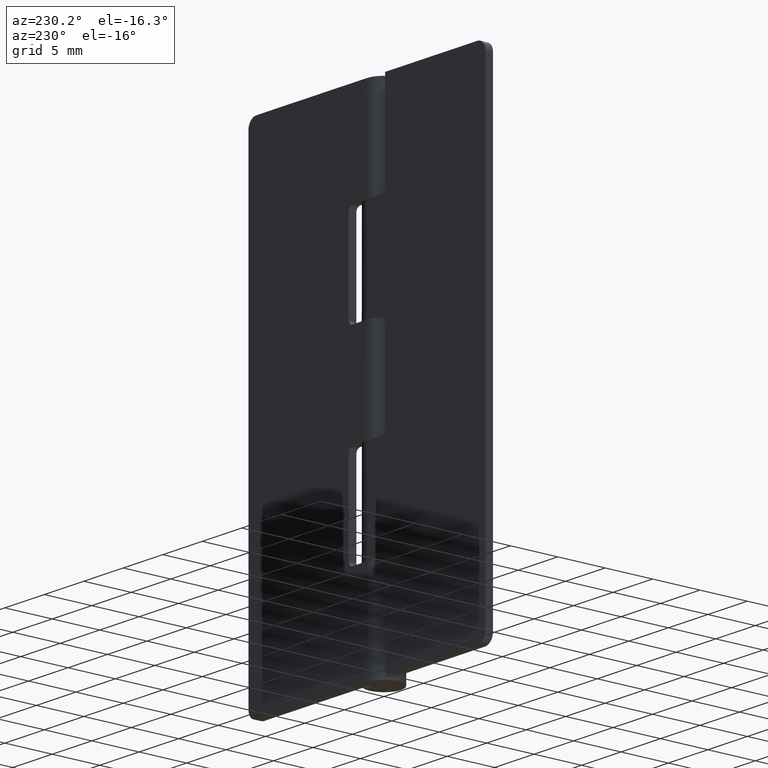
[diagram: clean part render]
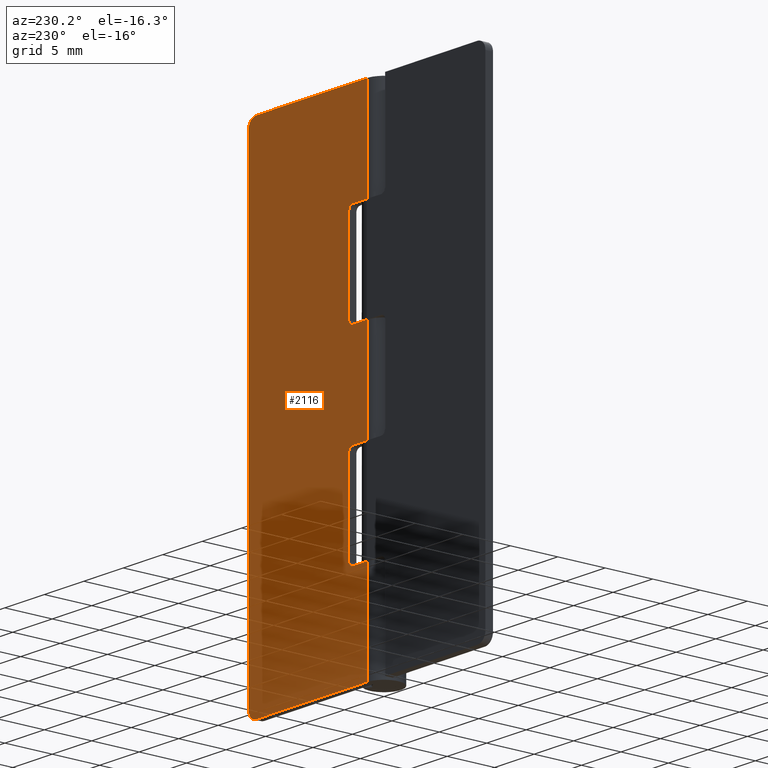
[diagram: same view with one face highlighted and labeled with its STEP entity id]
A machine part, auxiliary view. The second image highlights one B-rep face of the part: STEP entity #2116.
In plain terms, the highlighted face is a freeform B-spline surface patch.
Its self-contained STEP definition (entity closure, byte-faithful):
#1126=CARTESIAN_POINT('',(1.800003000000000,1.799999000000000,20.400001999999901));
#1127=VERTEX_POINT('',#1126);
#1133=CARTESIAN_POINT('',(2.300003000000000,1.799999000000000,19.900001999999901));
#1134=VERTEX_POINT('',#1133);
#1135=CARTESIAN_POINT('',(2.300003000000000,1.799999000000000,19.900001999999901));
#1136=CARTESIAN_POINT('',(2.300003000000000,1.799998999999940,20.400001999999898));
#1137=CARTESIAN_POINT('',(1.800003000000000,1.799999000000000,20.400001999999901));
#1145=(BOUNDED_CURVE()B_SPLINE_CURVE(2,(#1135,#1136,#1137),.UNSPECIFIED.,.F.,.U.)CURVE()GEOMETRIC_REPRESENTATION_ITEM()QUASI_UNIFORM_CURVE()RATIONAL_B_SPLINE_CURVE((1.0,0.707106781186548,1.0))REPRESENTATION_ITEM(''));
#1146=EDGE_CURVE('',#1134,#1127,#1145,.T.);
#1189=CARTESIAN_POINT('',(2.300003000000000,1.799999000000000,10.699997000000000));
#1190=VERTEX_POINT('',#1189);
#1196=CARTESIAN_POINT('',(1.800003000000000,1.799999000000000,10.199997000000000));
#1197=VERTEX_POINT('',#1196);
#1198=CARTESIAN_POINT('',(1.800003000000000,1.799999000000000,10.199997000000000));
#1199=CARTESIAN_POINT('',(2.300003000000000,1.799998999999940,10.199997000000000));
#1200=CARTESIAN_POINT('',(2.300003000000000,1.799999000000000,10.699997000000000));
#1208=(BOUNDED_CURVE()B_SPLINE_CURVE(2,(#1198,#1199,#1200),.UNSPECIFIED.,.F.,.U.)CURVE()GEOMETRIC_REPRESENTATION_ITEM()QUASI_UNIFORM_CURVE()RATIONAL_B_SPLINE_CURVE((1.0,0.707106781186548,1.0))REPRESENTATION_ITEM(''));
#1209=EDGE_CURVE('',#1197,#1190,#1208,.T.);
#1250=CARTESIAN_POINT('',(1.800003000000000,1.799999000000000,40.799995999999886));
#1251=VERTEX_POINT('',#1250);
#1257=CARTESIAN_POINT('',(2.300003000000000,1.799999000000000,40.299995999999901));
#1258=VERTEX_POINT('',#1257);
#1259=CARTESIAN_POINT('',(2.300003000000000,1.799998999999940,40.299995999999901));
#1260=CARTESIAN_POINT('',(2.300003000000000,1.799998999999940,40.799995999999908));
#1261=CARTESIAN_POINT('',(1.800003000000000,1.799998999999940,40.799995999999901));
#1269=(BOUNDED_CURVE()B_SPLINE_CURVE(2,(#1259,#1260,#1261),.UNSPECIFIED.,.F.,.U.)CURVE()GEOMETRIC_REPRESENTATION_ITEM()QUASI_UNIFORM_CURVE()RATIONAL_B_SPLINE_CURVE((1.0,0.707106781186548,1.0))REPRESENTATION_ITEM(''));
#1270=EDGE_CURVE('',#1258,#1251,#1269,.T.);
#1313=CARTESIAN_POINT('',(2.300003000000000,1.799999000000000,31.099990999999999));
#1314=VERTEX_POINT('',#1313);
#1320=CARTESIAN_POINT('',(1.800003000000000,1.799999000000000,30.599990999999999));
#1321=VERTEX_POINT('',#1320);
#1322=CARTESIAN_POINT('',(1.800003000000000,1.799998999999940,30.599990999999999));
#1323=CARTESIAN_POINT('',(2.300003000000000,1.799998999999940,30.599990999999992));
#1324=CARTESIAN_POINT('',(2.300003000000000,1.799998999999940,31.099990999999999));
#1332=(BOUNDED_CURVE()B_SPLINE_CURVE(2,(#1322,#1323,#1324),.UNSPECIFIED.,.F.,.U.)CURVE()GEOMETRIC_REPRESENTATION_ITEM()QUASI_UNIFORM_CURVE()RATIONAL_B_SPLINE_CURVE((1.0,0.707106781186548,1.0))REPRESENTATION_ITEM(''));
#1333=EDGE_CURVE('',#1321,#1314,#1332,.T.);
#1357=CARTESIAN_POINT('',(14.0,1.799999000000000,50.999992999999897));
#1358=VERTEX_POINT('',#1357);
#1359=CARTESIAN_POINT('',(15.0,1.799999000000000,49.999992999999897));
#1360=VERTEX_POINT('',#1359);
#1361=CARTESIAN_POINT('',(14.0,1.799999000000000,50.999992999999897));
#1362=CARTESIAN_POINT('',(14.999999999999995,1.799999000000001,50.999992999999890));
#1363=CARTESIAN_POINT('',(15.0,1.799999000000000,49.999992999999897));
#1371=(BOUNDED_CURVE()B_SPLINE_CURVE(2,(#1361,#1362,#1363),.UNSPECIFIED.,.F.,.U.)CURVE()GEOMETRIC_REPRESENTATION_ITEM()QUASI_UNIFORM_CURVE()RATIONAL_B_SPLINE_CURVE((1.0,0.707106781186548,1.0))REPRESENTATION_ITEM(''));
#1372=EDGE_CURVE('',#1358,#1360,#1371,.T.);
#1418=CARTESIAN_POINT('',(15.0,1.799999000000000,1.0));
#1419=VERTEX_POINT('',#1418);
#1420=CARTESIAN_POINT('',(14.0,1.799999000000000,0.0));
#1421=VERTEX_POINT('',#1420);
#1422=CARTESIAN_POINT('',(15.0,1.799999000000000,1.0));
#1423=CARTESIAN_POINT('',(14.999999999999995,1.799999000000001,0.0));
#1424=CARTESIAN_POINT('',(14.0,1.799999000000000,0.0));
#1432=(BOUNDED_CURVE()B_SPLINE_CURVE(2,(#1422,#1423,#1424),.UNSPECIFIED.,.F.,.U.)CURVE()GEOMETRIC_REPRESENTATION_ITEM()QUASI_UNIFORM_CURVE()RATIONAL_B_SPLINE_CURVE((1.0,0.707106781186548,1.0))REPRESENTATION_ITEM(''));
#1433=EDGE_CURVE('',#1419,#1421,#1432,.T.);
#1478=CARTESIAN_POINT('',(0.001897366339661,1.799999000000000,10.199997000000000));
#1479=VERTEX_POINT('',#1478);
#1480=CARTESIAN_POINT('',(0.001897366339661,1.799999000000000,10.199997000000000));
#1481=CARTESIAN_POINT('',(1.800003000000000,1.799999000000000,10.199997000000000));
#1482=QUASI_UNIFORM_CURVE('',1,(#1480,#1481),.UNSPECIFIED.,.F.,.U.);
#1483=EDGE_CURVE('',#1479,#1197,#1482,.T.);
#1547=CARTESIAN_POINT('',(0.001897366339661,1.799999000000000,20.400001999999901));
#1548=VERTEX_POINT('',#1547);
#1549=CARTESIAN_POINT('',(1.800003000000000,1.799999000000000,20.400001999999901));
#1550=CARTESIAN_POINT('',(0.001897366339661,1.799999000000000,20.400001999999901));
#1551=QUASI_UNIFORM_CURVE('',1,(#1549,#1550),.UNSPECIFIED.,.F.,.U.);
#1552=EDGE_CURVE('',#1127,#1548,#1551,.T.);
#1617=CARTESIAN_POINT('',(2.300003000000000,1.799999000000000,10.699997000000000));
#1618=CARTESIAN_POINT('',(2.300003000000000,1.799999000000000,19.900001999999901));
#1619=QUASI_UNIFORM_CURVE('',1,(#1617,#1618),.UNSPECIFIED.,.F.,.U.);
#1620=EDGE_CURVE('',#1190,#1134,#1619,.T.);
#1637=CARTESIAN_POINT('',(0.001897366339661,1.799999000000000,40.799995999999886));
#1638=VERTEX_POINT('',#1637);
#1639=CARTESIAN_POINT('',(0.001897366339661,1.799999000000000,40.799995999999886));
#1640=CARTESIAN_POINT('',(1.800003000000000,1.799999000000000,40.799995999999886));
#1641=QUASI_UNIFORM_CURVE('',1,(#1639,#1640),.UNSPECIFIED.,.F.,.U.);
#1642=EDGE_CURVE('',#1638,#1251,#1641,.T.);
#1722=CARTESIAN_POINT('',(0.001897366339661,1.799999000000000,30.599990999999999));
#1723=VERTEX_POINT('',#1722);
#1724=CARTESIAN_POINT('',(1.800003000000000,1.799999000000000,30.599990999999999));
#1725=CARTESIAN_POINT('',(0.001897366339661,1.799999000000000,30.599990999999999));
#1726=QUASI_UNIFORM_CURVE('',1,(#1724,#1725),.UNSPECIFIED.,.F.,.U.);
#1727=EDGE_CURVE('',#1321,#1723,#1726,.T.);
#1784=CARTESIAN_POINT('',(2.300003000000000,1.799999000000000,40.299995999999901));
#1785=CARTESIAN_POINT('',(2.300003000000000,1.799999000000000,31.099990999999999));
#1786=QUASI_UNIFORM_CURVE('',1,(#1784,#1785),.UNSPECIFIED.,.F.,.U.);
#1787=EDGE_CURVE('',#1258,#1314,#1786,.T.);
#1804=CARTESIAN_POINT('',(0.001897366339661,1.799999000000000,0.0));
#1805=VERTEX_POINT('',#1804);
#1806=CARTESIAN_POINT('',(0.001897366339661,1.799999000000000,0.0));
#1807=CARTESIAN_POINT('',(14.0,1.799999000000000,0.0));
#1808=QUASI_UNIFORM_CURVE('',1,(#1806,#1807),.UNSPECIFIED.,.F.,.U.);
#1809=EDGE_CURVE('',#1805,#1421,#1808,.T.);
#1882=CARTESIAN_POINT('',(0.001897366339661,1.799999000000000,50.999992999999897));
#1883=VERTEX_POINT('',#1882);
#1884=CARTESIAN_POINT('',(0.001897366339661,1.799999000000000,50.999992999999897));
#1885=CARTESIAN_POINT('',(14.0,1.799999000000000,50.999992999999897));
#1886=QUASI_UNIFORM_CURVE('',1,(#1884,#1885),.UNSPECIFIED.,.F.,.U.);
#1887=EDGE_CURVE('',#1883,#1358,#1886,.T.);
#1968=CARTESIAN_POINT('',(0.001897366339661,1.799999000000000,30.599990999999999));
#1969=CARTESIAN_POINT('',(0.001897366339661,1.799999000000000,20.400001999999901));
#1970=QUASI_UNIFORM_CURVE('',1,(#1968,#1969),.UNSPECIFIED.,.F.,.U.);
#1971=EDGE_CURVE('',#1723,#1548,#1970,.T.);
#2074=CARTESIAN_POINT('',(15.0,1.799999000000000,49.999992999999897));
#2075=CARTESIAN_POINT('',(15.0,1.799999000000000,1.0));
#2076=QUASI_UNIFORM_CURVE('',1,(#2074,#2075),.UNSPECIFIED.,.F.,.U.);
#2077=EDGE_CURVE('',#1360,#1419,#2076,.T.);
#2083=CARTESIAN_POINT('',(-0.747257831142439,1.799999000000000,-2.547449369294315));
#2084=CARTESIAN_POINT('',(-0.747257831142439,1.799999000000000,53.547440089416867));
#2085=CARTESIAN_POINT('',(15.749155599762560,1.799999000000000,-2.547449369294315));
#2086=CARTESIAN_POINT('',(15.749155599762560,1.799999000000000,53.547440089416867));
#2087=B_SPLINE_SURFACE_WITH_KNOTS('',1,1,((#2083,#2085),(#2084,#2086)),.UNSPECIFIED.,.F.,.F.,.U.,(2,2),(2,2),(0.0,56.094889458711187),(0.0,16.496413430905001),.UNSPECIFIED.);
#2088=ORIENTED_EDGE('',*,*,#2077,.T.);
#2089=ORIENTED_EDGE('',*,*,#1433,.T.);
#2090=ORIENTED_EDGE('',*,*,#1809,.F.);
#2091=CARTESIAN_POINT('',(0.001897366339661,1.799999000000000,10.199997000000000));
#2092=CARTESIAN_POINT('',(0.001897366339661,1.799999000000000,0.0));
#2093=QUASI_UNIFORM_CURVE('',1,(#2091,#2092),.UNSPECIFIED.,.F.,.U.);
#2094=EDGE_CURVE('',#1479,#1805,#2093,.T.);
#2095=ORIENTED_EDGE('',*,*,#2094,.F.);
#2096=ORIENTED_EDGE('',*,*,#1483,.T.);
#2097=ORIENTED_EDGE('',*,*,#1209,.T.);
#2098=ORIENTED_EDGE('',*,*,#1620,.T.);
#2099=ORIENTED_EDGE('',*,*,#1146,.T.);
#2100=ORIENTED_EDGE('',*,*,#1552,.T.);
#2101=ORIENTED_EDGE('',*,*,#1971,.F.);
#2102=ORIENTED_EDGE('',*,*,#1727,.F.);
#2103=ORIENTED_EDGE('',*,*,#1333,.T.);
#2104=ORIENTED_EDGE('',*,*,#1787,.F.);
#2105=ORIENTED_EDGE('',*,*,#1270,.T.);
#2106=ORIENTED_EDGE('',*,*,#1642,.F.);
#2107=CARTESIAN_POINT('',(0.001897366339661,1.799999000000000,50.999992999999897));
#2108=CARTESIAN_POINT('',(0.001897366339661,1.799999000000000,40.799995999999886));
#2109=QUASI_UNIFORM_CURVE('',1,(#2107,#2108),.UNSPECIFIED.,.F.,.U.);
#2110=EDGE_CURVE('',#1883,#1638,#2109,.T.);
#2111=ORIENTED_EDGE('',*,*,#2110,.F.);
#2112=ORIENTED_EDGE('',*,*,#1887,.T.);
#2113=ORIENTED_EDGE('',*,*,#1372,.T.);
#2114=EDGE_LOOP('',(#2088,#2089,#2090,#2095,#2096,#2097,#2098,#2099,#2100,#2101,#2102,#2103,#2104,#2105,#2106,#2111,#2112,#2113));
#2115=FACE_OUTER_BOUND('',#2114,.T.);
#2116=ADVANCED_FACE('',(#2115),#2087,.T.);